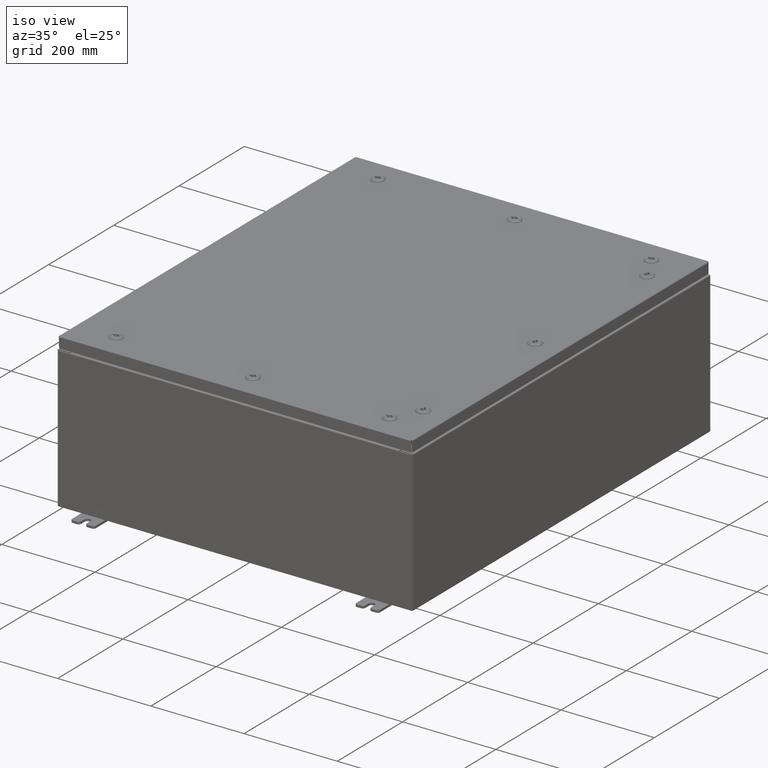
[diagram: clean part render]
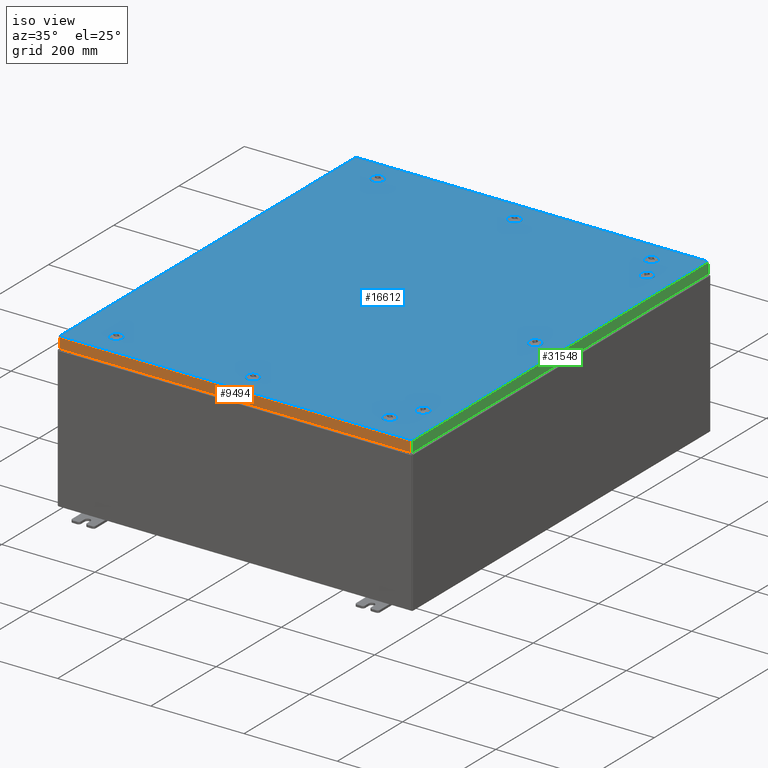
[diagram: same view with three faces highlighted in distinct colors, each labeled with its STEP entity id]
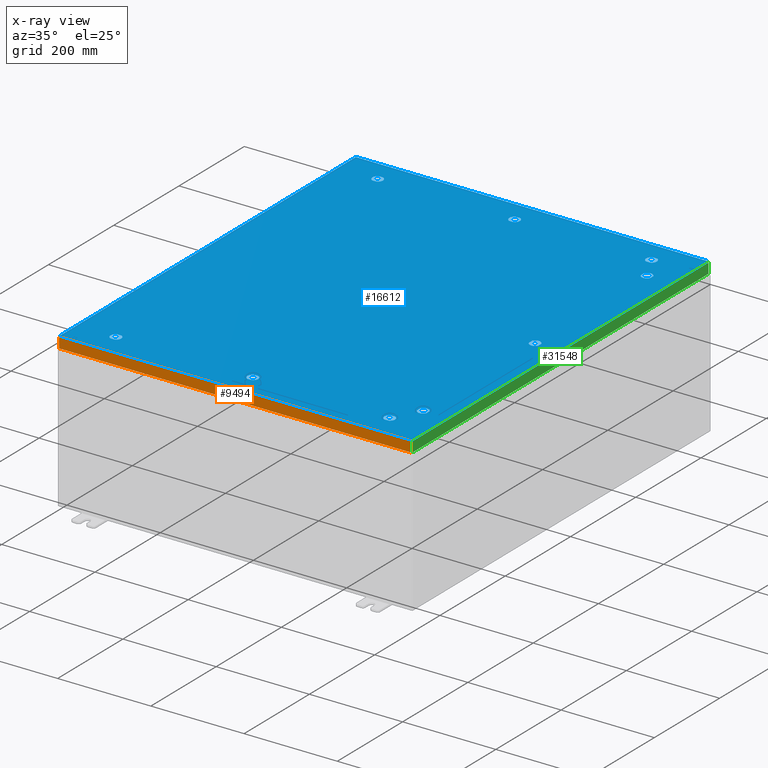
[diagram: x-ray of the same camera — body ghosted, the three highlighted faces saturated]
A machine part, iso view with three faces highlighted in distinct colors.
The next image is the same camera in x-ray (body ghosted, the three faces saturated) — at least one of them is partly hidden behind the body in this view.
Their STEP definitions:

[orange] entity #9494 — the highlighted planar face has unit normal (-0, 1, -0).
#3016 = LINE ( 'NONE', #12982, #55575 ) ;
#3815 = DIRECTION ( 'NONE',  ( 0.0000000000000000000, 2.532419924601866100E-015, 1.000000000000000000 ) ) ;
#3887 = VECTOR ( 'NONE', #36046, 39.37007874015748100 ) ;
#5533 = EDGE_CURVE ( 'NONE', #63000, #44303, #38535, .T. ) ;
#6385 = CARTESIAN_POINT ( 'NONE',  ( -14.84865786437627300, -17.93750000000000400, -0.9376999999999958700 ) ) ;
#9494 = ADVANCED_FACE ( 'NONE', ( #33503 ), #29136, .F. ) ;
#10246 = ORIENTED_EDGE ( 'NONE', *, *, #43720, .F. ) ;
#12769 = CARTESIAN_POINT ( 'NONE',  ( -14.84865786437627300, -17.93750000000000000, -0.08770000000000008300 ) ) ;
#12982 = CARTESIAN_POINT ( 'NONE',  ( 14.93749999999999800, -17.93750000000000000, -0.08770000000000008300 ) ) ;
#13424 = DIRECTION ( 'NONE',  ( 1.000000000000000000, 3.241995248935437300E-031, -8.117058051628660600E-046 ) ) ;
#14202 = LINE ( 'NONE', #41146, #3887 ) ;
#18793 = VERTEX_POINT ( 'NONE', #12769 ) ;
#19426 = CARTESIAN_POINT ( 'NONE',  ( 14.84865786437626900, -17.93750000000000000, -0.08770000000000008300 ) ) ;
#24119 = VECTOR ( 'NONE', #58808, 39.37007874015748100 ) ;
#26419 = ORIENTED_EDGE ( 'NONE', *, *, #5533, .F. ) ;
#26715 = ORIENTED_EDGE ( 'NONE', *, *, #63168, .F. ) ;
#29136 = PLANE ( 'NONE',  #48155 ) ;
#30064 = EDGE_LOOP ( 'NONE', ( #26715, #46625, #26419, #10246 ) ) ;
#33503 = FACE_OUTER_BOUND ( 'NONE', #30064, .T. ) ;
#34270 = DIRECTION ( 'NONE',  ( -3.241995248935437300E-031, 1.000000000000000000, -2.532419924601866100E-015 ) ) ;
#35294 = CARTESIAN_POINT ( 'NONE',  ( 14.93749999999999800, -17.93750000000000400, -0.9376999999999997600 ) ) ;
#36046 = DIRECTION ( 'NONE',  ( -0.0000000000000000000, -2.532419924601866100E-015, -1.000000000000000000 ) ) ;
#38535 = LINE ( 'NONE', #35294, #65637 ) ;
#41146 = CARTESIAN_POINT ( 'NONE',  ( 14.84865786437626800, -17.93750000000000000, -0.07469999999999980800 ) ) ;
#43720 = EDGE_CURVE ( 'NONE', #47338, #63000, #14202, .T. ) ;
#44303 = VERTEX_POINT ( 'NONE', #6385 ) ;
#46625 = ORIENTED_EDGE ( 'NONE', *, *, #47986, .T. ) ;
#47066 = CARTESIAN_POINT ( 'NONE',  ( 14.84865786437626800, -17.93750000000000400, -0.9376999999999997600 ) ) ;
#47338 = VERTEX_POINT ( 'NONE', #19426 ) ;
#47986 = EDGE_CURVE ( 'NONE', #18793, #44303, #64768, .T. ) ;
#48155 = AXIS2_PLACEMENT_3D ( 'NONE', #64790, #34270, #3815 ) ;
#55575 = VECTOR ( 'NONE', #13424, 39.37007874015748100 ) ;
#58808 = DIRECTION ( 'NONE',  ( 0.0000000000000000000, -2.532419924601866100E-015, -1.000000000000000000 ) ) ;
#60916 = DIRECTION ( 'NONE',  ( -1.000000000000000000, 4.379057701015054300E-047, 1.280196549332207300E-016 ) ) ;
#63000 = VERTEX_POINT ( 'NONE', #47066 ) ;
#63168 = EDGE_CURVE ( 'NONE', #18793, #47338, #3016, .T. ) ;
#63918 = CARTESIAN_POINT ( 'NONE',  ( -14.84865786437627100, -17.93750000000000000, 4.568609605355756000E-014 ) ) ;
#64768 = LINE ( 'NONE', #63918, #24119 ) ;
#64790 = CARTESIAN_POINT ( 'NONE',  ( 5.815328977777940600E-030, -17.93750000000000000, 4.568609605355756000E-014 ) ) ;
#65637 = VECTOR ( 'NONE', #60916, 39.37007874015748100 ) ;

[blue] entity #16612 — the highlighted planar face has unit normal (0, 0, -1).
#359 = DIRECTION ( 'NONE',  ( -0.0000000000000000000, -6.982962677686266700E-015, 1.000000000000000000 ) ) ;
#459 = CARTESIAN_POINT ( 'NONE',  ( 13.18280000000000700, -0.1994523752678676000, 0.0000000000000000000 ) ) ;
#544 = ORIENTED_EDGE ( 'NONE', *, *, #5459, .F. ) ;
#588 = CARTESIAN_POINT ( 'NONE',  ( -11.76195237526786900, 15.39279999999999400, 0.0000000000000000000 ) ) ;
#610 = ORIENTED_EDGE ( 'NONE', *, *, #33789, .F. ) ;
#1187 = DIRECTION ( 'NONE',  ( -0.0000000000000000000, -6.982962677686266700E-015, 1.000000000000000000 ) ) ;
#1341 = VERTEX_POINT ( 'NONE', #4282 ) ;
#1456 = CARTESIAN_POINT ( 'NONE',  ( 0.1994523752678995500, 15.39279999999999400, 0.0000000000000000000 ) ) ;
#1467 = CARTESIAN_POINT ( 'NONE',  ( 0.4425000000000126100, -15.78779999999999000, -2.521317385144146900E-013 ) ) ;
#1684 = CARTESIAN_POINT ( 'NONE',  ( 11.56249999999998800, 15.78779999999999500, -2.428513811157696100E-013 ) ) ;
#1892 = EDGE_CURVE ( 'NONE', #19955, #24487, #31582, .T. ) ;
#2088 = DIRECTION ( 'NONE',  ( 6.982962677686266700E-015, -0.0000000000000000000, 1.000000000000000000 ) ) ;
#2128 = EDGE_CURVE ( 'NONE', #56860, #6809, #25212, .T. ) ;
#2182 = DIRECTION ( 'NONE',  ( 1.000000000000000000, 0.0000000000000000000, 0.0000000000000000000 ) ) ;
#2397 = CIRCLE ( 'NONE', #59677, 0.4424999999999961700 ) ;
#2458 = CARTESIAN_POINT ( 'NONE',  ( -11.56249999999998200, -15.78779999999999500, -2.521317385144146900E-013 ) ) ;
#2469 = DIRECTION ( 'NONE',  ( 1.000000000000000000, 0.0000000000000000000, 6.982962677686277800E-015 ) ) ;
#2561 = DIRECTION ( 'NONE',  ( 0.0000000000000000000, 1.000000000000000000, 6.982962677686270700E-015 ) ) ;
#2890 = VERTEX_POINT ( 'NONE', #47988 ) ;
#2985 = VECTOR ( 'NONE', #31969, 39.37007874015748100 ) ;
#3296 = ORIENTED_EDGE ( 'NONE', *, *, #3694, .F. ) ;
#3578 = FACE_BOUND ( 'NONE', #49626, .T. ) ;
#3694 = EDGE_CURVE ( 'NONE', #3831, #27234, #29164, .T. ) ;
#3733 = CIRCLE ( 'NONE', #13900, 0.4424999999999961700 ) ;
#3831 = VERTEX_POINT ( 'NONE', #13609 ) ;
#3965 = ORIENTED_EDGE ( 'NONE', *, *, #48045, .T. ) ;
#4138 = ORIENTED_EDGE ( 'NONE', *, *, #35649, .F. ) ;
#4282 = CARTESIAN_POINT ( 'NONE',  ( -11.76195237526786700, 16.18279999999998600, 0.0000000000000000000 ) ) ;
#4340 = DIRECTION ( 'NONE',  ( 5.478697338139220100E-015, 1.000000000000000000, 6.982962677686228100E-015 ) ) ;
#4590 = LINE ( 'NONE', #16625, #2985 ) ;
#4602 = DIRECTION ( 'NONE',  ( 0.0000000000000000000, 0.0000000000000000000, 1.000000000000000000 ) ) ;
#4657 = VERTEX_POINT ( 'NONE', #59283 ) ;
#4795 = CARTESIAN_POINT ( 'NONE',  ( 0.1994523752679067700, 16.18279999999998300, 0.0000000000000000000 ) ) ;
#4824 = CARTESIAN_POINT ( 'NONE',  ( 13.18280000000000200, 13.69945237526790100, 0.0000000000000000000 ) ) ;
#5459 = EDGE_CURVE ( 'NONE', #44189, #12868, #36951, .T. ) ;
#5838 = CARTESIAN_POINT ( 'NONE',  ( 12.39280000000001400, 13.69945237526790600, 0.0000000000000000000 ) ) ;
#6244 = CARTESIAN_POINT ( 'NONE',  ( 0.0000000000000000000, 0.0000000000000000000, 0.0000000000000000000 ) ) ;
#6489 = ORIENTED_EDGE ( 'NONE', *, *, #43046, .F. ) ;
#6557 = EDGE_CURVE ( 'NONE', #60683, #24432, #21763, .T. ) ;
#6764 = CARTESIAN_POINT ( 'NONE',  ( 11.36304762473210100, -15.39279999999999900, -7.914855633430593000E-015 ) ) ;
#6809 = VERTEX_POINT ( 'NONE', #58549 ) ;
#6829 = DIRECTION ( 'NONE',  ( -1.000000000000000000, 0.0000000000000000000, 6.982962677686304600E-015 ) ) ;
#7077 = EDGE_CURVE ( 'NONE', #9345, #17169, #34446, .T. ) ;
#7118 = VERTEX_POINT ( 'NONE', #40671 ) ;
#7121 = EDGE_CURVE ( 'NONE', #24487, #44189, #63173, .T. ) ;
#7350 = ORIENTED_EDGE ( 'NONE', *, *, #45188, .F. ) ;
#7592 = DIRECTION ( 'NONE',  ( 0.0000000000000000000, 1.000000000000000000, 6.982962677686304600E-015 ) ) ;
#7629 = VECTOR ( 'NONE', #60830, 39.37007874015748100 ) ;
#7836 = VECTOR ( 'NONE', #48957, 39.37007874015748100 ) ;
#8030 = DIRECTION ( 'NONE',  ( -5.478697338139235000E-015, 1.000000000000000000, -0.0000000000000000000 ) ) ;
#8397 = CARTESIAN_POINT ( 'NONE',  ( 11.36304762473209200, -16.18279999999998600, -1.343139614880271000E-014 ) ) ;
#8412 = LINE ( 'NONE', #65658, #30682 ) ;
#8450 = CARTESIAN_POINT ( 'NONE',  ( 14.84979999999999700, -17.84979999999999800, -2.048885995248197400E-016 ) ) ;
#8813 = ORIENTED_EDGE ( 'NONE', *, *, #37124, .F. ) ;
#9001 = VECTOR ( 'NONE', #50949, 39.37007874015748100 ) ;
#9025 = ORIENTED_EDGE ( 'NONE', *, *, #27928, .T. ) ;
#9026 = VECTOR ( 'NONE', #60738, 39.37007874015748100 ) ;
#9143 = ORIENTED_EDGE ( 'NONE', *, *, #23170, .F. ) ;
#9307 = CARTESIAN_POINT ( 'NONE',  ( 13.18280000000000200, -13.69945237526790100, -9.566276464123617700E-014 ) ) ;
#9345 = VERTEX_POINT ( 'NONE', #33186 ) ;
#9461 = VERTEX_POINT ( 'NONE', #23803 ) ;
#9499 = CIRCLE ( 'NONE', #51205, 0.4424999999999961700 ) ;
#9585 = VERTEX_POINT ( 'NONE', #36352 ) ;
#9700 = CIRCLE ( 'NONE', #60592, 0.4424999999999961700 ) ;
#9933 = DIRECTION ( 'NONE',  ( -1.000000000000000000, 1.095739467627836100E-014, 0.0000000000000000000 ) ) ;
#9989 = ORIENTED_EDGE ( 'NONE', *, *, #66001, .F. ) ;
#9994 = EDGE_CURVE ( 'NONE', #36186, #33895, #43006, .T. ) ;
#10004 = CARTESIAN_POINT ( 'NONE',  ( 12.78780000000000600, -13.50000000000001800, -9.426999614876466400E-014 ) ) ;
#10181 = VERTEX_POINT ( 'NONE', #25143 ) ;
#10943 = CARTESIAN_POINT ( 'NONE',  ( 11.36304762473209200, -16.18279999999998600, -1.343139614880270700E-014 ) ) ;
#11366 = CARTESIAN_POINT ( 'NONE',  ( 12.39280000000001000, -13.30054762473213400, 0.0000000000000000000 ) ) ;
#11442 = ORIENTED_EDGE ( 'NONE', *, *, #62356, .F. ) ;
#11557 = DIRECTION ( 'NONE',  ( -1.000000000000000000, 0.0000000000000000000, -0.0000000000000000000 ) ) ;
#11752 = DIRECTION ( 'NONE',  ( -1.000000000000000000, -1.095739467627832000E-014, 6.982962677686228800E-015 ) ) ;
#12176 = CIRCLE ( 'NONE', #16839, 0.4424999999999969000 ) ;
#12262 = ORIENTED_EDGE ( 'NONE', *, *, #23365, .F. ) ;
#12450 = VERTEX_POINT ( 'NONE', #33624 ) ;
#12846 = DIRECTION ( 'NONE',  ( 1.000000000000000000, 1.095739467627836100E-014, 7.785697190085984100E-029 ) ) ;
#12868 = VERTEX_POINT ( 'NONE', #459 ) ;
#13124 = CARTESIAN_POINT ( 'NONE',  ( 14.84979999999999700, 17.84979999999999800, -2.048885995248197400E-016 ) ) ;
#13131 = CARTESIAN_POINT ( 'NONE',  ( -11.56249999999998200, -15.78779999999999500, -2.521317385144146900E-013 ) ) ;
#13136 = ORIENTED_EDGE ( 'NONE', *, *, #32238, .F. ) ;
#13423 = DIRECTION ( 'NONE',  ( 0.0000000000000000000, 0.0000000000000000000, 1.000000000000000000 ) ) ;
#13609 = CARTESIAN_POINT ( 'NONE',  ( 0.4425000000000126100, 15.78779999999999000, 0.0000000000000000000 ) ) ;
#13900 = AXIS2_PLACEMENT_3D ( 'NONE', #1684, #37279, #6829 ) ;
#14203 = DIRECTION ( 'NONE',  ( 1.000000000000000000, 1.095739467627832000E-014, 7.785697190085955000E-029 ) ) ;
#14453 = CARTESIAN_POINT ( 'NONE',  ( 12.39280000000001000, 13.30054762473213400, 0.0000000000000000000 ) ) ;
#14943 = LINE ( 'NONE', #39473, #53989 ) ;
#14976 = CARTESIAN_POINT ( 'NONE',  ( 1.529834876451987200E-014, 15.78779999999999000, 0.0000000000000000000 ) ) ;
#15094 = DIRECTION ( 'NONE',  ( 0.0000000000000000000, 1.000000000000000000, 6.982962677686269100E-015 ) ) ;
#15334 = CARTESIAN_POINT ( 'NONE',  ( 11.76195237526786600, -16.18279999999999000, -1.064585916385969600E-014 ) ) ;
#15367 = EDGE_CURVE ( 'NONE', #26225, #1341, #40270, .T. ) ;
#15456 = ORIENTED_EDGE ( 'NONE', *, *, #54020, .F. ) ;
#15517 = FACE_OUTER_BOUND ( 'NONE', #36880, .T. ) ;
#15891 = VERTEX_POINT ( 'NONE', #29868 ) ;
#16004 = ORIENTED_EDGE ( 'NONE', *, *, #30581, .F. ) ;
#16056 = DIRECTION ( 'NONE',  ( 0.0000000000000000000, 0.0000000000000000000, 1.000000000000000000 ) ) ;
#16196 = CARTESIAN_POINT ( 'NONE',  ( -11.56249999999998800, 15.78779999999999000, 0.0000000000000000000 ) ) ;
#16382 = VECTOR ( 'NONE', #8030, 39.37007874015748100 ) ;
#16612 = ADVANCED_FACE ( 'NONE', ( #57759, #30638, #18685, #44181, #17101, #3578, #56146, #42572, #29027, #15517 ), #31783, .F. ) ;
#16625 = CARTESIAN_POINT ( 'NONE',  ( 0.1994523752678995500, 15.39279999999999400, 0.0000000000000000000 ) ) ;
#16791 = EDGE_CURVE ( 'NONE', #7118, #42010, #63317, .T. ) ;
#16806 = LINE ( 'NONE', #6764, #55839 ) ;
#16839 = AXIS2_PLACEMENT_3D ( 'NONE', #63183, #32657, #2182 ) ;
#16874 = EDGE_CURVE ( 'NONE', #58896, #9585, #46556, .T. ) ;
#16978 = EDGE_CURVE ( 'NONE', #4657, #24927, #38630, .T. ) ;
#16997 = AXIS2_PLACEMENT_3D ( 'NONE', #50924, #20400, #56030 ) ;
#17101 = FACE_BOUND ( 'NONE', #58580, .T. ) ;
#17102 = DIRECTION ( 'NONE',  ( -6.982962677686266700E-015, -6.982962677686266700E-015, 1.000000000000000000 ) ) ;
#17169 = VERTEX_POINT ( 'NONE', #9307 ) ;
#17286 = DIRECTION ( 'NONE',  ( 6.982962677686266700E-015, -0.0000000000000000000, 1.000000000000000000 ) ) ;
#17538 = VERTEX_POINT ( 'NONE', #1467 ) ;
#17547 = CARTESIAN_POINT ( 'NONE',  ( 11.56249999999998200, -15.78779999999999500, -9.280357398645127900E-015 ) ) ;
#18083 = CARTESIAN_POINT ( 'NONE',  ( 1.529834876451987200E-014, 15.78779999999999000, 0.0000000000000000000 ) ) ;
#18110 = ORIENTED_EDGE ( 'NONE', *, *, #22197, .F. ) ;
#18250 = DIRECTION ( 'NONE',  ( 0.0000000000000000000, 1.000000000000000000, 6.982962677686304600E-015 ) ) ;
#18685 = FACE_BOUND ( 'NONE', #38820, .T. ) ;
#18922 = CARTESIAN_POINT ( 'NONE',  ( 1.529834876451987200E-014, -15.78779999999999000, -2.521317385144146900E-013 ) ) ;
#18979 = DIRECTION ( 'NONE',  ( -1.000000000000000000, -0.0000000000000000000, -0.0000000000000000000 ) ) ;
#19141 = CARTESIAN_POINT ( 'NONE',  ( -11.36304762473210200, 15.39279999999999400, 0.0000000000000000000 ) ) ;
#19403 = EDGE_CURVE ( 'NONE', #42010, #20419, #16806, .T. ) ;
#19520 = VERTEX_POINT ( 'NONE', #23748 ) ;
#19777 = CARTESIAN_POINT ( 'NONE',  ( 12.39280000000001400, 0.1994523752679062100, 0.0000000000000000000 ) ) ;
#19955 = VERTEX_POINT ( 'NONE', #36411 ) ;
#20075 = DIRECTION ( 'NONE',  ( 1.000000000000000000, 0.0000000000000000000, 0.0000000000000000000 ) ) ;
#20400 = DIRECTION ( 'NONE',  ( 0.0000000000000000000, 0.0000000000000000000, 1.000000000000000000 ) ) ;
#20419 = VERTEX_POINT ( 'NONE', #64215 ) ;
#20783 = VECTOR ( 'NONE', #4340, 39.37007874015748100 ) ;
#21134 = LINE ( 'NONE', #55688, #7629 ) ;
#21319 = VERTEX_POINT ( 'NONE', #48821 ) ;
#21328 = DIRECTION ( 'NONE',  ( 1.000000000000000000, 0.0000000000000000000, 0.0000000000000000000 ) ) ;
#21677 = DIRECTION ( 'NONE',  ( 0.0000000000000000000, 0.0000000000000000000, 1.000000000000000000 ) ) ;
#21763 = LINE ( 'NONE', #5838, #47250 ) ;
#21782 = CIRCLE ( 'NONE', #56621, 0.4424999999999961700 ) ;
#22032 = CARTESIAN_POINT ( 'NONE',  ( 12.39280000000001400, 13.69945237526790600, 0.0000000000000000000 ) ) ;
#22197 = EDGE_CURVE ( 'NONE', #53107, #21319, #2397, .T. ) ;
#22303 = DIRECTION ( 'NONE',  ( -1.000000000000000000, -0.0000000000000000000, -6.982962677686306200E-015 ) ) ;
#22344 = VERTEX_POINT ( 'NONE', #23770 ) ;
#22366 = AXIS2_PLACEMENT_3D ( 'NONE', #46559, #16056, #51709 ) ;
#22670 = DIRECTION ( 'NONE',  ( 1.000000000000000000, 0.0000000000000000000, 6.982962677686252500E-015 ) ) ;
#22740 = ORIENTED_EDGE ( 'NONE', *, *, #59459, .F. ) ;
#23170 = EDGE_CURVE ( 'NONE', #43356, #3831, #34175, .T. ) ;
#23187 = CARTESIAN_POINT ( 'NONE',  ( 11.36304762473210200, 15.39279999999999900, -2.414586126232981000E-013 ) ) ;
#23193 = DIRECTION ( 'NONE',  ( 1.000000000000000000, 0.0000000000000000000, 0.0000000000000000000 ) ) ;
#23335 = CARTESIAN_POINT ( 'NONE',  ( -11.56249999999998800, 15.78779999999999000, 0.0000000000000000000 ) ) ;
#23365 = EDGE_CURVE ( 'NONE', #20419, #50380, #9499, .T. ) ;
#23748 = CARTESIAN_POINT ( 'NONE',  ( -11.36304762473209200, -16.18279999999998600, -2.548900087721007400E-013 ) ) ;
#23770 = CARTESIAN_POINT ( 'NONE',  ( 0.1994523752678995500, -15.39279999999999400, -2.493734682567286900E-013 ) ) ;
#23803 = CARTESIAN_POINT ( 'NONE',  ( 11.76195237526786900, 15.39279999999999900, -2.442441496082410700E-013 ) ) ;
#23823 = CARTESIAN_POINT ( 'NONE',  ( 12.00499999999998300, 15.78779999999999500, -2.459413421006457100E-013 ) ) ;
#24039 = DIRECTION ( 'NONE',  ( 0.0000000000000000000, 1.000000000000000000, 6.982962677686270700E-015 ) ) ;
#24283 = AXIS2_PLACEMENT_3D ( 'NONE', #47610, #17102, #52757 ) ;
#24387 = ORIENTED_EDGE ( 'NONE', *, *, #59757, .F. ) ;
#24432 = VERTEX_POINT ( 'NONE', #14453 ) ;
#24439 = AXIS2_PLACEMENT_3D ( 'NONE', #52198, #21677, #57310 ) ;
#24487 = VERTEX_POINT ( 'NONE', #19777 ) ;
#24906 = DIRECTION ( 'NONE',  ( 1.000000000000000000, -0.0000000000000000000, -0.0000000000000000000 ) ) ;
#24927 = VERTEX_POINT ( 'NONE', #11366 ) ;
#25143 = CARTESIAN_POINT ( 'NONE',  ( -0.1994523752678657400, 16.18279999999998600, 0.0000000000000000000 ) ) ;
#25212 = CIRCLE ( 'NONE', #41516, 0.4424999999999983400 ) ;
#25511 = EDGE_CURVE ( 'NONE', #25588, #43356, #4590, .T. ) ;
#25588 = VERTEX_POINT ( 'NONE', #47574 ) ;
#25923 = VERTEX_POINT ( 'NONE', #65377 ) ;
#26225 = VERTEX_POINT ( 'NONE', #47026 ) ;
#26570 = VECTOR ( 'NONE', #37175, 39.37007874015748100 ) ;
#26604 = ORIENTED_EDGE ( 'NONE', *, *, #7077, .F. ) ;
#26674 = AXIS2_PLACEMENT_3D ( 'NONE', #35080, #4602, #40174 ) ;
#26913 = CARTESIAN_POINT ( 'NONE',  ( 11.36304762473210200, 15.39279999999999900, -2.414586126232981000E-013 ) ) ;
#27066 = ORIENTED_EDGE ( 'NONE', *, *, #50408, .F. ) ;
#27234 = VERTEX_POINT ( 'NONE', #64735 ) ;
#27928 = EDGE_CURVE ( 'NONE', #57544, #63427, #8412, .T. ) ;
#28219 = DIRECTION ( 'NONE',  ( -0.0000000000000000000, -6.982962677686266700E-015, 1.000000000000000000 ) ) ;
#28293 = LINE ( 'NONE', #43603, #16382 ) ;
#28322 = VECTOR ( 'NONE', #60704, 39.37007874015748100 ) ;
#28342 = ORIENTED_EDGE ( 'NONE', *, *, #16791, .F. ) ;
#28423 = AXIS2_PLACEMENT_3D ( 'NONE', #10004, #45599, #15094 ) ;
#28455 = DIRECTION ( 'NONE',  ( 1.000000000000000000, 0.0000000000000000000, 0.0000000000000000000 ) ) ;
#28463 = EDGE_LOOP ( 'NONE', ( #61516, #28342, #47175, #65648, #12262 ) ) ;
#29027 = FACE_BOUND ( 'NONE', #41253, .T. ) ;
#29164 = CIRCLE ( 'NONE', #53535, 0.4424999999999973400 ) ;
#29868 = CARTESIAN_POINT ( 'NONE',  ( 13.18280000000000400, 13.30054762473213300, 0.0000000000000000000 ) ) ;
#29879 = VECTOR ( 'NONE', #9933, 39.37007874015748100 ) ;
#30174 = CARTESIAN_POINT ( 'NONE',  ( 11.76195237526786700, 16.18279999999999000, 0.0000000000000000000 ) ) ;
#30176 = ORIENTED_EDGE ( 'NONE', *, *, #57422, .F. ) ;
#30445 = CARTESIAN_POINT ( 'NONE',  ( 12.39280000000001400, 0.1994523752679053800, 0.0000000000000000000 ) ) ;
#30581 = EDGE_CURVE ( 'NONE', #10181, #25588, #12176, .T. ) ;
#30638 = FACE_BOUND ( 'NONE', #44011, .T. ) ;
#30682 = VECTOR ( 'NONE', #24906, 39.37007874015748100 ) ;
#30776 = ORIENTED_EDGE ( 'NONE', *, *, #52615, .F. ) ;
#30793 = CIRCLE ( 'NONE', #22366, 0.4424999999999961700 ) ;
#30801 = CARTESIAN_POINT ( 'NONE',  ( 12.78780000000000600, -13.50000000000001800, -9.426999614876466400E-014 ) ) ;
#31066 = VECTOR ( 'NONE', #54793, 39.37007874015748100 ) ;
#31582 = CIRCLE ( 'NONE', #24439, 0.4424999999999983400 ) ;
#31636 = CARTESIAN_POINT ( 'NONE',  ( 1.529834876451987200E-014, -15.78779999999999000, -2.521317385144146900E-013 ) ) ;
#31783 = PLANE ( 'NONE',  #34269 ) ;
#31969 = DIRECTION ( 'NONE',  ( 1.000000000000000000, -0.0000000000000000000, -0.0000000000000000000 ) ) ;
#32147 = CIRCLE ( 'NONE', #16997, 0.4424999999999961700 ) ;
#32238 = EDGE_CURVE ( 'NONE', #51323, #43092, #3733, .T. ) ;
#32557 = CARTESIAN_POINT ( 'NONE',  ( 11.56249999999998800, 15.78779999999999500, -2.428513811157696100E-013 ) ) ;
#32657 = DIRECTION ( 'NONE',  ( 0.0000000000000000000, 0.0000000000000000000, 1.000000000000000000 ) ) ;
#32948 = DIRECTION ( 'NONE',  ( -6.982962677686266700E-015, -6.982962677686266700E-015, 1.000000000000000000 ) ) ;
#33039 = DIRECTION ( 'NONE',  ( -0.0000000000000000000, -6.982962677686266700E-015, 1.000000000000000000 ) ) ;
#33173 = CARTESIAN_POINT ( 'NONE',  ( 11.36304762473209400, 16.18279999999998600, -2.414586126232980000E-013 ) ) ;
#33186 = CARTESIAN_POINT ( 'NONE',  ( 12.39280000000001400, -13.69945237526790600, -9.566276464123621500E-014 ) ) ;
#33368 = VECTOR ( 'NONE', #40409, 39.37007874015748100 ) ;
#33624 = CARTESIAN_POINT ( 'NONE',  ( -11.11999999999998900, 15.78779999999999000, 0.0000000000000000000 ) ) ;
#33685 = EDGE_CURVE ( 'NONE', #17538, #22344, #53134, .T. ) ;
#33789 = EDGE_CURVE ( 'NONE', #24432, #15891, #65052, .T. ) ;
#33895 = VERTEX_POINT ( 'NONE', #54629 ) ;
#34175 = CIRCLE ( 'NONE', #52478, 0.4424999999999973400 ) ;
#34269 = AXIS2_PLACEMENT_3D ( 'NONE', #6244, #42033, #11557 ) ;
#34274 = CIRCLE ( 'NONE', #42036, 0.4424999999999983400 ) ;
#34419 = LINE ( 'NONE', #26913, #59942 ) ;
#34446 = CIRCLE ( 'NONE', #28423, 0.4424999999999961700 ) ;
#34881 = LINE ( 'NONE', #8450, #7836 ) ;
#34973 = CARTESIAN_POINT ( 'NONE',  ( -14.84980000000000200, 17.84979999999999800, -2.048885995248197400E-016 ) ) ;
#35080 = CARTESIAN_POINT ( 'NONE',  ( 12.78780000000000600, 1.529834876451990400E-014, 0.0000000000000000000 ) ) ;
#35159 = EDGE_CURVE ( 'NONE', #12868, #19955, #28293, .T. ) ;
#35363 = CARTESIAN_POINT ( 'NONE',  ( 12.39280000000001400, -13.69945237526790600, -9.566276464123621500E-014 ) ) ;
#35435 = VERTEX_POINT ( 'NONE', #15334 ) ;
#35496 = ORIENTED_EDGE ( 'NONE', *, *, #37321, .F. ) ;
#35525 = ORIENTED_EDGE ( 'NONE', *, *, #63281, .T. ) ;
#35649 = EDGE_CURVE ( 'NONE', #43092, #63817, #56188, .T. ) ;
#35769 = EDGE_CURVE ( 'NONE', #50380, #35435, #53003, .T. ) ;
#35932 = DIRECTION ( 'NONE',  ( 0.0000000000000000000, 1.000000000000000000, 6.982962677686270700E-015 ) ) ;
#36186 = VERTEX_POINT ( 'NONE', #588 ) ;
#36352 = CARTESIAN_POINT ( 'NONE',  ( 0.1994523752679070700, -16.18279999999998300, -2.548900087721007400E-013 ) ) ;
#36411 = CARTESIAN_POINT ( 'NONE',  ( 13.18280000000000200, 0.1994523752679009100, 0.0000000000000000000 ) ) ;
#36486 = AXIS2_PLACEMENT_3D ( 'NONE', #63553, #33039, #2561 ) ;
#36526 = DIRECTION ( 'NONE',  ( -1.095739467627838000E-014, -1.000000000000000000, 0.0000000000000000000 ) ) ;
#36778 = DIRECTION ( 'NONE',  ( 0.0000000000000000000, 1.000000000000000000, 6.982962677686304600E-015 ) ) ;
#36880 = EDGE_LOOP ( 'NONE', ( #9025, #50166, #35525, #3965 ) ) ;
#36898 = CARTESIAN_POINT ( 'NONE',  ( 11.36304762473209400, 16.18279999999998600, -2.414586126232980000E-013 ) ) ;
#36951 = CIRCLE ( 'NONE', #26674, 0.4424999999999983400 ) ;
#37124 = EDGE_CURVE ( 'NONE', #21319, #56860, #65624, .T. ) ;
#37175 = DIRECTION ( 'NONE',  ( -1.000000000000000000, 0.0000000000000000000, 7.785697190086082800E-029 ) ) ;
#37279 = DIRECTION ( 'NONE',  ( 6.982962677686266700E-015, -0.0000000000000000000, 1.000000000000000000 ) ) ;
#37321 = EDGE_CURVE ( 'NONE', #2890, #60683, #32147, .T. ) ;
#37672 = DIRECTION ( 'NONE',  ( -1.000000000000000000, 0.0000000000000000000, 6.982962677686270700E-015 ) ) ;
#37915 = CARTESIAN_POINT ( 'NONE',  ( -11.76195237526786700, -15.39279999999999900, -2.493734682567286400E-013 ) ) ;
#38049 = DIRECTION ( 'NONE',  ( -0.0000000000000000000, -6.982962677686266700E-015, 1.000000000000000000 ) ) ;
#38071 = CARTESIAN_POINT ( 'NONE',  ( 11.76195237526786700, -15.39279999999999900, 0.0000000000000000000 ) ) ;
#38630 = CIRCLE ( 'NONE', #58952, 0.4424999999999983400 ) ;
#38686 = ORIENTED_EDGE ( 'NONE', *, *, #16874, .F. ) ;
#38820 = EDGE_LOOP ( 'NONE', ( #41609, #544, #45780, #47183 ) ) ;
#39267 = ORIENTED_EDGE ( 'NONE', *, *, #15367, .F. ) ;
#39354 = EDGE_CURVE ( 'NONE', #35435, #7118, #42357, .T. ) ;
#39473 = CARTESIAN_POINT ( 'NONE',  ( 14.84979999999999700, 17.84979999999999800, -2.048885995248197400E-016 ) ) ;
#39709 = CARTESIAN_POINT ( 'NONE',  ( 13.18280000000000200, -13.69945237526790100, -9.566276464123617700E-014 ) ) ;
#39787 = EDGE_LOOP ( 'NONE', ( #47004, #30176, #39267, #22740, #15456 ) ) ;
#40174 = DIRECTION ( 'NONE',  ( 1.000000000000000000, 0.0000000000000000000, 0.0000000000000000000 ) ) ;
#40219 = EDGE_CURVE ( 'NONE', #19520, #53107, #9700, .T. ) ;
#40242 = DIRECTION ( 'NONE',  ( 1.095739467627838000E-014, -1.000000000000000000, -6.982962677686269100E-015 ) ) ;
#40270 = LINE ( 'NONE', #45978, #28322 ) ;
#40409 = DIRECTION ( 'NONE',  ( -5.478697338139220100E-015, 1.000000000000000000, -0.0000000000000000000 ) ) ;
#40671 = CARTESIAN_POINT ( 'NONE',  ( 12.00499999999998100, -15.78779999999999500, -6.190396413768972700E-015 ) ) ;
#40701 = EDGE_CURVE ( 'NONE', #17169, #4657, #46271, .T. ) ;
#41014 = VECTOR ( 'NONE', #11752, 39.37007874015748100 ) ;
#41253 = EDGE_LOOP ( 'NONE', ( #43898, #16004, #9989, #3296, #9143 ) ) ;
#41454 = ORIENTED_EDGE ( 'NONE', *, *, #58071, .F. ) ;
#41516 = AXIS2_PLACEMENT_3D ( 'NONE', #58749, #28219, #63872 ) ;
#41609 = ORIENTED_EDGE ( 'NONE', *, *, #35159, .F. ) ;
#42010 = VERTEX_POINT ( 'NONE', #38071 ) ;
#42033 = DIRECTION ( 'NONE',  ( 0.0000000000000000000, 0.0000000000000000000, -1.000000000000000000 ) ) ;
#42036 = AXIS2_PLACEMENT_3D ( 'NONE', #32557, #2088, #37672 ) ;
#42078 = CARTESIAN_POINT ( 'NONE',  ( -14.84980000000000200, -17.84980000000000200, -2.048885995248197400E-016 ) ) ;
#42150 = CIRCLE ( 'NONE', #52124, 0.4424999999999983400 ) ;
#42357 = CIRCLE ( 'NONE', #24283, 0.4424999999999983400 ) ;
#42572 = FACE_BOUND ( 'NONE', #39787, .T. ) ;
#42934 = CARTESIAN_POINT ( 'NONE',  ( -11.11999999999998700, -15.78779999999999500, -2.521317385144146900E-013 ) ) ;
#43006 = LINE ( 'NONE', #19141, #31066 ) ;
#43046 = EDGE_CURVE ( 'NONE', #15891, #2890, #46921, .T. ) ;
#43092 = VERTEX_POINT ( 'NONE', #30174 ) ;
#43298 = AXIS2_PLACEMENT_3D ( 'NONE', #43912, #13423, #49067 ) ;
#43346 = CARTESIAN_POINT ( 'NONE',  ( 0.1994523752679067700, -16.18279999999998300, -2.548900087721007400E-013 ) ) ;
#43356 = VERTEX_POINT ( 'NONE', #1456 ) ;
#43444 = EDGE_CURVE ( 'NONE', #9585, #17538, #61248, .T. ) ;
#43603 = CARTESIAN_POINT ( 'NONE',  ( 13.18280000000000200, 0.1994523752679009100, 0.0000000000000000000 ) ) ;
#43898 = ORIENTED_EDGE ( 'NONE', *, *, #25511, .F. ) ;
#43912 = CARTESIAN_POINT ( 'NONE',  ( 12.78780000000000600, 13.50000000000001800, 0.0000000000000000000 ) ) ;
#43976 = DIRECTION ( 'NONE',  ( 1.000000000000000000, -1.095739467627832000E-014, 6.982962677686152300E-015 ) ) ;
#44011 = EDGE_LOOP ( 'NONE', ( #6489, #610, #50261, #35496 ) ) ;
#44179 = ORIENTED_EDGE ( 'NONE', *, *, #40701, .F. ) ;
#44181 = FACE_BOUND ( 'NONE', #28463, .T. ) ;
#44189 = VERTEX_POINT ( 'NONE', #44678 ) ;
#44678 = CARTESIAN_POINT ( 'NONE',  ( 12.39280000000001000, -0.1994523752678671000, 0.0000000000000000000 ) ) ;
#44767 = VECTOR ( 'NONE', #14203, 39.37007874015748100 ) ;
#45188 = EDGE_CURVE ( 'NONE', #22344, #25923, #21134, .T. ) ;
#45599 = DIRECTION ( 'NONE',  ( -0.0000000000000000000, -6.982962677686266700E-015, 1.000000000000000000 ) ) ;
#45780 = ORIENTED_EDGE ( 'NONE', *, *, #7121, .F. ) ;
#45978 = CARTESIAN_POINT ( 'NONE',  ( -11.36304762473209400, 16.18279999999998300, 0.0000000000000000000 ) ) ;
#46271 = LINE ( 'NONE', #39709, #20783 ) ;
#46556 = LINE ( 'NONE', #43346, #60119 ) ;
#46559 = CARTESIAN_POINT ( 'NONE',  ( -11.56249999999998800, 15.78779999999999000, 0.0000000000000000000 ) ) ;
#46921 = LINE ( 'NONE', #4824, #33368 ) ;
#47004 = ORIENTED_EDGE ( 'NONE', *, *, #9994, .F. ) ;
#47026 = CARTESIAN_POINT ( 'NONE',  ( -11.36304762473209400, 16.18279999999998300, 0.0000000000000000000 ) ) ;
#47175 = ORIENTED_EDGE ( 'NONE', *, *, #39354, .F. ) ;
#47183 = ORIENTED_EDGE ( 'NONE', *, *, #1892, .F. ) ;
#47250 = VECTOR ( 'NONE', #36526, 39.37007874015748100 ) ;
#47574 = CARTESIAN_POINT ( 'NONE',  ( -0.1994523752678689600, 15.39279999999999400, 0.0000000000000000000 ) ) ;
#47610 = CARTESIAN_POINT ( 'NONE',  ( 11.56249999999998200, -15.78779999999999500, -9.280357398645127900E-015 ) ) ;
#47655 = EDGE_CURVE ( 'NONE', #25923, #58896, #21782, .T. ) ;
#47796 = CARTESIAN_POINT ( 'NONE',  ( 11.56249999999998800, 15.78779999999999500, -2.428513811157696100E-013 ) ) ;
#47988 = CARTESIAN_POINT ( 'NONE',  ( 13.18280000000000200, 13.69945237526790100, 0.0000000000000000000 ) ) ;
#47997 = ORIENTED_EDGE ( 'NONE', *, *, #16978, .F. ) ;
#48045 = EDGE_CURVE ( 'NONE', #61591, #57544, #49632, .T. ) ;
#48767 = DIRECTION ( 'NONE',  ( -0.0000000000000000000, -6.982962677686266700E-015, 1.000000000000000000 ) ) ;
#48821 = CARTESIAN_POINT ( 'NONE',  ( -11.36304762473210100, -15.39279999999999900, -2.493734682567286900E-013 ) ) ;
#48957 = DIRECTION ( 'NONE',  ( 0.0000000000000000000, 1.000000000000000000, 0.0000000000000000000 ) ) ;
#49067 = DIRECTION ( 'NONE',  ( 1.000000000000000000, 0.0000000000000000000, 0.0000000000000000000 ) ) ;
#49626 = EDGE_LOOP ( 'NONE', ( #38686, #56908, #7350, #57488, #53055 ) ) ;
#49632 = LINE ( 'NONE', #55598, #9026 ) ;
#49843 = CARTESIAN_POINT ( 'NONE',  ( -11.36304762473209200, -16.18279999999998600, -2.548900087721007400E-013 ) ) ;
#50166 = ORIENTED_EDGE ( 'NONE', *, *, #55834, .T. ) ;
#50261 = ORIENTED_EDGE ( 'NONE', *, *, #6557, .F. ) ;
#50380 = VERTEX_POINT ( 'NONE', #10943 ) ;
#50408 = EDGE_CURVE ( 'NONE', #61323, #9461, #34419, .T. ) ;
#50615 = DIRECTION ( 'NONE',  ( 0.0000000000000000000, 0.0000000000000000000, 1.000000000000000000 ) ) ;
#50924 = CARTESIAN_POINT ( 'NONE',  ( 12.78780000000000600, 13.50000000000001800, 0.0000000000000000000 ) ) ;
#50949 = DIRECTION ( 'NONE',  ( -1.095739467627836100E-014, -1.000000000000000000, 0.0000000000000000000 ) ) ;
#51165 = AXIS2_PLACEMENT_3D ( 'NONE', #47796, #17286, #52945 ) ;
#51205 = AXIS2_PLACEMENT_3D ( 'NONE', #63472, #32948, #2469 ) ;
#51323 = VERTEX_POINT ( 'NONE', #23823 ) ;
#51709 = DIRECTION ( 'NONE',  ( 1.000000000000000000, 0.0000000000000000000, 0.0000000000000000000 ) ) ;
#51841 = DIRECTION ( 'NONE',  ( 0.0000000000000000000, 0.0000000000000000000, 1.000000000000000000 ) ) ;
#52124 = AXIS2_PLACEMENT_3D ( 'NONE', #23335, #58987, #28455 ) ;
#52198 = CARTESIAN_POINT ( 'NONE',  ( 12.78780000000000600, 1.529834876451990400E-014, 0.0000000000000000000 ) ) ;
#52339 = ORIENTED_EDGE ( 'NONE', *, *, #2128, .F. ) ;
#52343 = DIRECTION ( 'NONE',  ( 1.000000000000000000, 0.0000000000000000000, -6.982962677686265900E-015 ) ) ;
#52478 = AXIS2_PLACEMENT_3D ( 'NONE', #14976, #50615, #20075 ) ;
#52573 = CARTESIAN_POINT ( 'NONE',  ( -11.36304762473210100, -15.39279999999999900, -2.493734682567286900E-013 ) ) ;
#52615 = EDGE_CURVE ( 'NONE', #24927, #9345, #53428, .T. ) ;
#52757 = DIRECTION ( 'NONE',  ( 1.000000000000000000, 0.0000000000000000000, 6.982962677686252500E-015 ) ) ;
#52945 = DIRECTION ( 'NONE',  ( -1.000000000000000000, 0.0000000000000000000, 6.982962677686304600E-015 ) ) ;
#53003 = LINE ( 'NONE', #8397, #63349 ) ;
#53055 = ORIENTED_EDGE ( 'NONE', *, *, #43444, .F. ) ;
#53107 = VERTEX_POINT ( 'NONE', #42934 ) ;
#53134 = CIRCLE ( 'NONE', #36486, 0.4424999999999983400 ) ;
#53188 = DIRECTION ( 'NONE',  ( -6.982962677686266700E-015, -6.982962677686266700E-015, 1.000000000000000000 ) ) ;
#53428 = LINE ( 'NONE', #35363, #65355 ) ;
#53535 = AXIS2_PLACEMENT_3D ( 'NONE', #18083, #53729, #23193 ) ;
#53729 = DIRECTION ( 'NONE',  ( 0.0000000000000000000, 0.0000000000000000000, 1.000000000000000000 ) ) ;
#53989 = VECTOR ( 'NONE', #18979, 39.37007874015748100 ) ;
#54020 = EDGE_CURVE ( 'NONE', #33895, #12450, #42150, .T. ) ;
#54571 = DIRECTION ( 'NONE',  ( -0.0000000000000000000, -6.982962677686266700E-015, 1.000000000000000000 ) ) ;
#54629 = CARTESIAN_POINT ( 'NONE',  ( -11.36304762473210200, 15.39279999999999400, 0.0000000000000000000 ) ) ;
#54780 = AXIS2_PLACEMENT_3D ( 'NONE', #17547, #53188, #22670 ) ;
#54793 = DIRECTION ( 'NONE',  ( 1.000000000000000000, -0.0000000000000000000, -0.0000000000000000000 ) ) ;
#54925 = EDGE_LOOP ( 'NONE', ( #4138, #13136, #11442, #27066, #24387 ) ) ;
#55598 = CARTESIAN_POINT ( 'NONE',  ( -14.84980000000000200, 17.84979999999999800, -2.048885995248197400E-016 ) ) ;
#55688 = CARTESIAN_POINT ( 'NONE',  ( 0.1994523752678995500, -15.39279999999999400, -2.493734682567286900E-013 ) ) ;
#55834 = EDGE_CURVE ( 'NONE', #63427, #63863, #34881, .T. ) ;
#55839 = VECTOR ( 'NONE', #22303, 39.37007874015748100 ) ;
#56030 = DIRECTION ( 'NONE',  ( 1.000000000000000000, 0.0000000000000000000, 0.0000000000000000000 ) ) ;
#56146 = FACE_BOUND ( 'NONE', #54925, .T. ) ;
#56188 = LINE ( 'NONE', #36898, #41014 ) ;
#56621 = AXIS2_PLACEMENT_3D ( 'NONE', #31636, #1187, #36778 ) ;
#56860 = VERTEX_POINT ( 'NONE', #37915 ) ;
#56907 = AXIS2_PLACEMENT_3D ( 'NONE', #18922, #54571, #24039 ) ;
#56908 = ORIENTED_EDGE ( 'NONE', *, *, #47655, .F. ) ;
#56985 = AXIS2_PLACEMENT_3D ( 'NONE', #16196, #51841, #21328 ) ;
#56988 = LINE ( 'NONE', #4795, #29879 ) ;
#57310 = DIRECTION ( 'NONE',  ( 1.000000000000000000, 0.0000000000000000000, 0.0000000000000000000 ) ) ;
#57422 = EDGE_CURVE ( 'NONE', #1341, #36186, #30793, .T. ) ;
#57488 = ORIENTED_EDGE ( 'NONE', *, *, #33685, .F. ) ;
#57544 = VERTEX_POINT ( 'NONE', #42078 ) ;
#57759 = FACE_BOUND ( 'NONE', #66003, .T. ) ;
#58071 = EDGE_CURVE ( 'NONE', #6809, #19520, #58322, .T. ) ;
#58322 = LINE ( 'NONE', #49843, #44767 ) ;
#58549 = CARTESIAN_POINT ( 'NONE',  ( -11.76195237526786600, -16.18279999999999000, 0.0000000000000000000 ) ) ;
#58580 = EDGE_LOOP ( 'NONE', ( #41454, #52339, #8813, #18110, #65593 ) ) ;
#58749 = CARTESIAN_POINT ( 'NONE',  ( -11.56249999999998200, -15.78779999999999500, -2.521317385144146900E-013 ) ) ;
#58896 = VERTEX_POINT ( 'NONE', #61994 ) ;
#58952 = AXIS2_PLACEMENT_3D ( 'NONE', #30801, #359, #35932 ) ;
#58987 = DIRECTION ( 'NONE',  ( 0.0000000000000000000, 0.0000000000000000000, 1.000000000000000000 ) ) ;
#59028 = CIRCLE ( 'NONE', #56985, 0.4424999999999983400 ) ;
#59283 = CARTESIAN_POINT ( 'NONE',  ( 13.18280000000000400, -13.30054762473213300, -9.287722765629316300E-014 ) ) ;
#59459 = EDGE_CURVE ( 'NONE', #12450, #26225, #59028, .T. ) ;
#59677 = AXIS2_PLACEMENT_3D ( 'NONE', #2458, #38049, #7592 ) ;
#59757 = EDGE_CURVE ( 'NONE', #63817, #61323, #34274, .T. ) ;
#59942 = VECTOR ( 'NONE', #52343, 39.37007874015748100 ) ;
#60119 = VECTOR ( 'NONE', #12846, 39.37007874015748100 ) ;
#60592 = AXIS2_PLACEMENT_3D ( 'NONE', #13131, #48767, #18250 ) ;
#60683 = VERTEX_POINT ( 'NONE', #22032 ) ;
#60704 = DIRECTION ( 'NONE',  ( -1.000000000000000000, 1.095739467627832000E-014, 0.0000000000000000000 ) ) ;
#60738 = DIRECTION ( 'NONE',  ( 0.0000000000000000000, -1.000000000000000000, 0.0000000000000000000 ) ) ;
#60830 = DIRECTION ( 'NONE',  ( -1.000000000000000000, 0.0000000000000000000, 7.785697190086061500E-029 ) ) ;
#61070 = CARTESIAN_POINT ( 'NONE',  ( 14.84979999999999700, -17.84979999999999800, -2.048885995248197400E-016 ) ) ;
#61248 = CIRCLE ( 'NONE', #56907, 0.4424999999999983400 ) ;
#61323 = VERTEX_POINT ( 'NONE', #23187 ) ;
#61516 = ORIENTED_EDGE ( 'NONE', *, *, #19403, .F. ) ;
#61591 = VERTEX_POINT ( 'NONE', #34973 ) ;
#61994 = CARTESIAN_POINT ( 'NONE',  ( -0.1994523752678657400, -16.18279999999998600, 0.0000000000000000000 ) ) ;
#62356 = EDGE_CURVE ( 'NONE', #9461, #51323, #65993, .T. ) ;
#63173 = LINE ( 'NONE', #30445, #9001 ) ;
#63183 = CARTESIAN_POINT ( 'NONE',  ( 1.529834876451987200E-014, 15.78779999999999000, 0.0000000000000000000 ) ) ;
#63281 = EDGE_CURVE ( 'NONE', #63863, #61591, #14943, .T. ) ;
#63317 = CIRCLE ( 'NONE', #54780, 0.4424999999999983400 ) ;
#63349 = VECTOR ( 'NONE', #43976, 39.37007874015748100 ) ;
#63427 = VERTEX_POINT ( 'NONE', #61070 ) ;
#63472 = CARTESIAN_POINT ( 'NONE',  ( 11.56249999999998200, -15.78779999999999500, -9.280357398645127900E-015 ) ) ;
#63553 = CARTESIAN_POINT ( 'NONE',  ( 1.529834876451987200E-014, -15.78779999999999000, -2.521317385144146900E-013 ) ) ;
#63817 = VERTEX_POINT ( 'NONE', #33173 ) ;
#63863 = VERTEX_POINT ( 'NONE', #13124 ) ;
#63872 = DIRECTION ( 'NONE',  ( 0.0000000000000000000, 1.000000000000000000, 6.982962677686270700E-015 ) ) ;
#64215 = CARTESIAN_POINT ( 'NONE',  ( 11.36304762473210100, -15.39279999999999900, -7.914855633430593000E-015 ) ) ;
#64735 = CARTESIAN_POINT ( 'NONE',  ( 0.1994523752679068500, 16.18279999999998300, 0.0000000000000000000 ) ) ;
#65052 = CIRCLE ( 'NONE', #43298, 0.4424999999999983400 ) ;
#65355 = VECTOR ( 'NONE', #40242, 39.37007874015748100 ) ;
#65377 = CARTESIAN_POINT ( 'NONE',  ( -0.1994523752678689600, -15.39279999999999400, -2.493734682567286400E-013 ) ) ;
#65593 = ORIENTED_EDGE ( 'NONE', *, *, #40219, .F. ) ;
#65624 = LINE ( 'NONE', #52573, #26570 ) ;
#65648 = ORIENTED_EDGE ( 'NONE', *, *, #35769, .F. ) ;
#65658 = CARTESIAN_POINT ( 'NONE',  ( -14.84980000000000200, -17.84980000000000200, -2.048885995248197400E-016 ) ) ;
#65993 = CIRCLE ( 'NONE', #51165, 0.4424999999999961700 ) ;
#66001 = EDGE_CURVE ( 'NONE', #27234, #10181, #56988, .T. ) ;
#66003 = EDGE_LOOP ( 'NONE', ( #30776, #47997, #44179, #26604 ) ) ;

[green] entity #31548 — the highlighted planar face has unit normal (1, 0, 0).
#1239 = CARTESIAN_POINT ( 'NONE',  ( 14.93749999999999800, 0.0000000000000000000, 3.808883627975194400E-014 ) ) ;
#4512 = DIRECTION ( 'NONE',  ( 0.0000000000000000000, -1.000000000000000000, 0.0000000000000000000 ) ) ;
#4943 = EDGE_CURVE ( 'NONE', #32929, #36278, #24225, .T. ) ;
#6823 = DIRECTION ( 'NONE',  ( 1.000000000000000000, 0.0000000000000000000, 2.532419924601866100E-015 ) ) ;
#7891 = ORIENTED_EDGE ( 'NONE', *, *, #37784, .T. ) ;
#7921 = CARTESIAN_POINT ( 'NONE',  ( 14.93749999999999800, 0.0000000000000000000, -0.08770000000000008300 ) ) ;
#9469 = ORIENTED_EDGE ( 'NONE', *, *, #4943, .F. ) ;
#9689 = CARTESIAN_POINT ( 'NONE',  ( 14.93750000000000000, 17.84865786437627500, -0.9376999999999997600 ) ) ;
#10534 = CARTESIAN_POINT ( 'NONE',  ( 14.93749999999999800, 17.84865786437626800, -0.08770000000000008300 ) ) ;
#11114 = VERTEX_POINT ( 'NONE', #9689 ) ;
#12383 = LINE ( 'NONE', #65489, #36265 ) ;
#12965 = CARTESIAN_POINT ( 'NONE',  ( 14.93749999999999800, 17.84865786437626800, 1.627253479934829100E-013 ) ) ;
#14387 = VECTOR ( 'NONE', #48603, 39.37007874015748100 ) ;
#14625 = ORIENTED_EDGE ( 'NONE', *, *, #45121, .F. ) ;
#21301 = EDGE_CURVE ( 'NONE', #11114, #34071, #31107, .T. ) ;
#22577 = VECTOR ( 'NONE', #64001, 39.37007874015748100 ) ;
#24225 = LINE ( 'NONE', #31620, #36180 ) ;
#27609 = CARTESIAN_POINT ( 'NONE',  ( 14.93750000000000000, -17.84865786437626400, -0.9376999999999997600 ) ) ;
#30098 = AXIS2_PLACEMENT_3D ( 'NONE', #1239, #6823, #42374 ) ;
#31107 = LINE ( 'NONE', #12965, #14387 ) ;
#31548 = ADVANCED_FACE ( 'NONE', ( #33223 ), #57554, .T. ) ;
#31620 = CARTESIAN_POINT ( 'NONE',  ( 14.93749999999999800, -17.84865786437627100, -0.07469999999999980800 ) ) ;
#32929 = VERTEX_POINT ( 'NONE', #27609 ) ;
#33223 = FACE_OUTER_BOUND ( 'NONE', #58947, .T. ) ;
#34071 = VERTEX_POINT ( 'NONE', #10534 ) ;
#36110 = LINE ( 'NONE', #7921, #22577 ) ;
#36180 = VECTOR ( 'NONE', #36761, 39.37007874015748100 ) ;
#36265 = VECTOR ( 'NONE', #4512, 39.37007874015748100 ) ;
#36278 = VERTEX_POINT ( 'NONE', #62448 ) ;
#36761 = DIRECTION ( 'NONE',  ( -2.532419924601866100E-015, -6.982962677686265900E-015, 1.000000000000000000 ) ) ;
#37784 = EDGE_CURVE ( 'NONE', #34071, #36278, #36110, .T. ) ;
#42374 = DIRECTION ( 'NONE',  ( 2.532419924601866100E-015, 0.0000000000000000000, -1.000000000000000000 ) ) ;
#45121 = EDGE_CURVE ( 'NONE', #11114, #32929, #12383, .T. ) ;
#48603 = DIRECTION ( 'NONE',  ( -2.532419924601866100E-015, -6.982962677686265900E-015, 1.000000000000000000 ) ) ;
#50269 = ORIENTED_EDGE ( 'NONE', *, *, #21301, .T. ) ;
#57554 = PLANE ( 'NONE',  #30098 ) ;
#58947 = EDGE_LOOP ( 'NONE', ( #9469, #14625, #50269, #7891 ) ) ;
#62448 = CARTESIAN_POINT ( 'NONE',  ( 14.93749999999999800, -17.84865786437627100, -0.08770000000000008300 ) ) ;
#64001 = DIRECTION ( 'NONE',  ( 0.0000000000000000000, -1.000000000000000000, 0.0000000000000000000 ) ) ;
#65489 = CARTESIAN_POINT ( 'NONE',  ( 14.93750000000000000, -17.93750000000000000, -0.9376999999999997600 ) ) ;